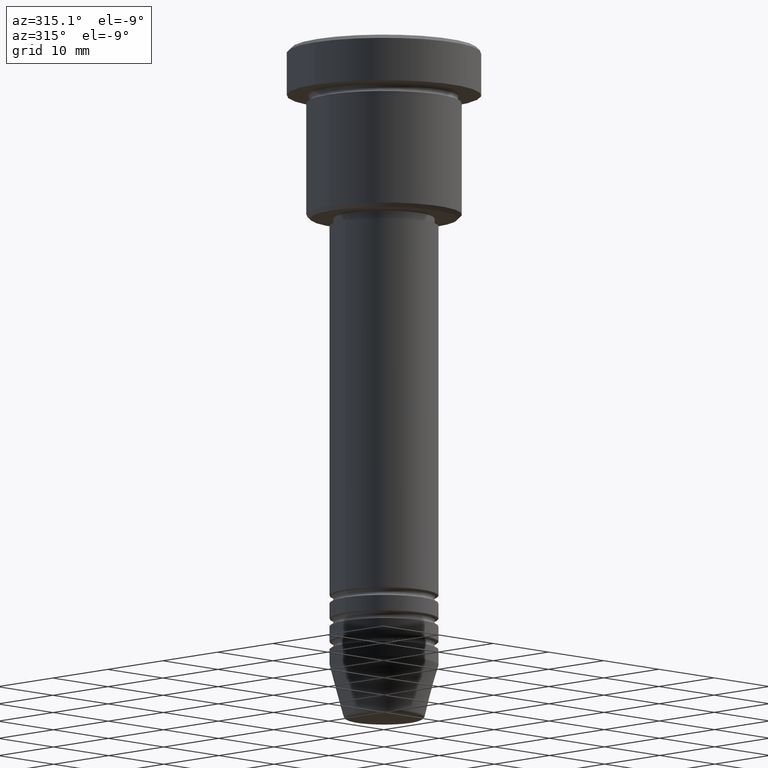
[diagram: clean part render]
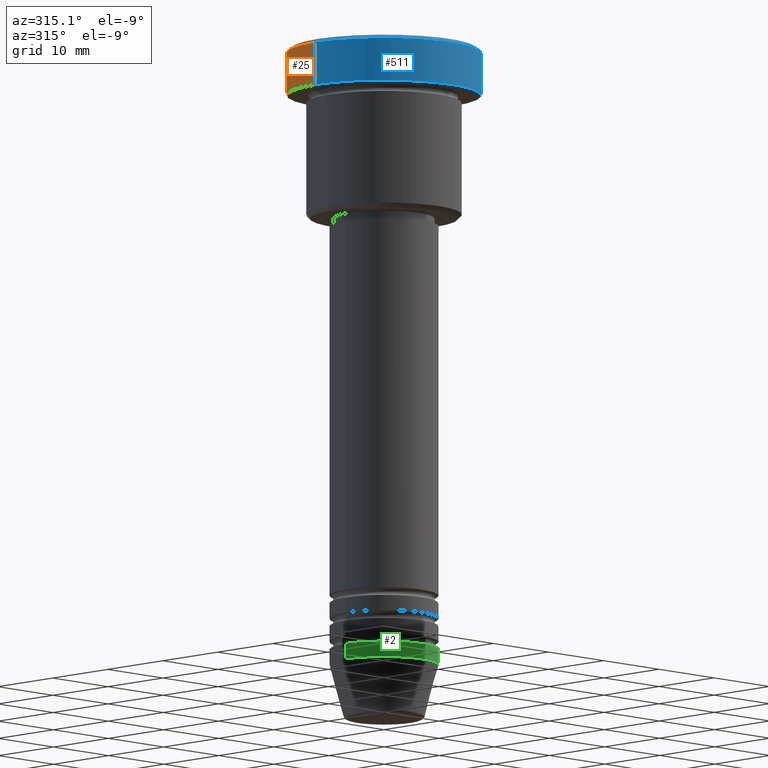
[diagram: same view with three faces highlighted in distinct colors, each labeled with its STEP entity id]
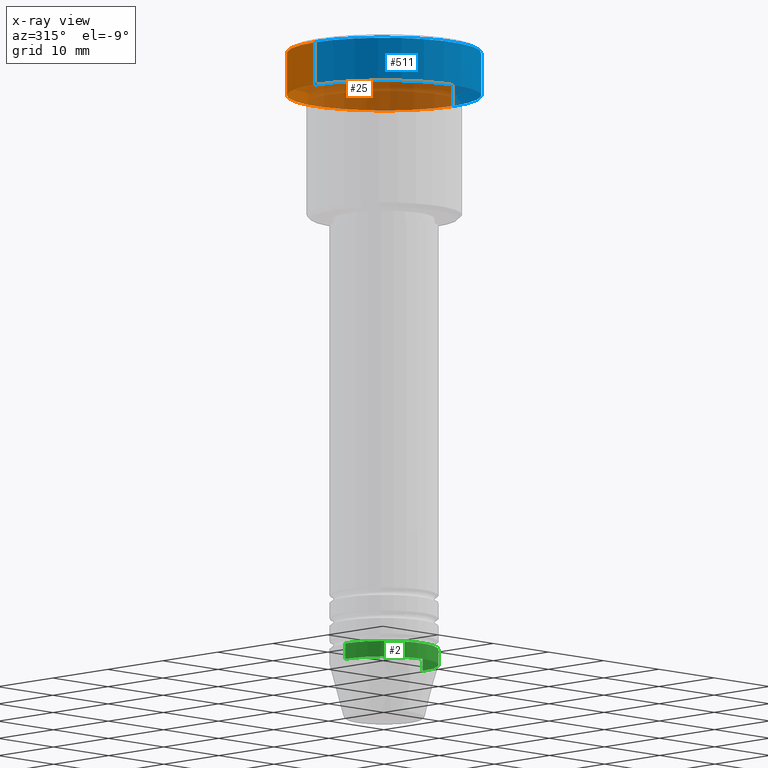
[diagram: x-ray of the same camera — body ghosted, the three highlighted faces saturated]
A machine part, auxiliary view with three faces highlighted in distinct colors.
The next image is the same camera in x-ray (body ghosted, the three faces saturated) — at least one of them is partly hidden behind the body in this view.
Their STEP definitions:

[orange] entity #25 — the highlighted cylindrical surface (partial cylindrical patch) has radius 12.5 mm, axis along (-0, -0, 1).
#17 = CARTESIAN_POINT ( 'NONE',  ( 12.50000000000000000, 0.000000000000000000, -5.999999999999996447 ) ) ;
#25 = ADVANCED_FACE ( 'NONE', ( #221 ), #951, .T. ) ;
#26 = CARTESIAN_POINT ( 'NONE',  ( 12.50000000000000000, 0.000000000000000000, -0.4999999999999917843 ) ) ;
#106 = EDGE_CURVE ( 'NONE', #1090, #573, #600, .T. ) ;
#185 = ORIENTED_EDGE ( 'NONE', *, *, #472, .T. ) ;
#188 = DIRECTION ( 'NONE',  ( -0.000000000000000000, -0.000000000000000000, 1.000000000000000000 ) ) ;
#221 = FACE_OUTER_BOUND ( 'NONE', #1119, .T. ) ;
#236 = AXIS2_PLACEMENT_3D ( 'NONE', #396, #416, #515 ) ;
#248 = CARTESIAN_POINT ( 'NONE',  ( -12.50000000000000000, 1.530808498934191521E-15, -0.4999999999999917843 ) ) ;
#396 = CARTESIAN_POINT ( 'NONE',  ( 0.000000000000000000, 0.000000000000000000, -0.4999999999999917843 ) ) ;
#409 = CIRCLE ( 'NONE', #487, 12.50000000000000000 ) ;
#416 = DIRECTION ( 'NONE',  ( 0.000000000000000000, 0.000000000000000000, -1.000000000000000000 ) ) ;
#424 = VECTOR ( 'NONE', #1147, 1000.000000000000000 ) ;
#472 = EDGE_CURVE ( 'NONE', #742, #544, #543, .T. ) ;
#487 = AXIS2_PLACEMENT_3D ( 'NONE', #845, #188, #919 ) ;
#515 = DIRECTION ( 'NONE',  ( 1.000000000000000000, 0.000000000000000000, 0.000000000000000000 ) ) ;
#535 = ORIENTED_EDGE ( 'NONE', *, *, #750, .T. ) ;
#543 = LINE ( 'NONE', #635, #603 ) ;
#544 = VERTEX_POINT ( 'NONE', #248 ) ;
#573 = VERTEX_POINT ( 'NONE', #26 ) ;
#600 = LINE ( 'NONE', #786, #424 ) ;
#603 = VECTOR ( 'NONE', #902, 1000.000000000000000 ) ;
#611 = DIRECTION ( 'NONE',  ( -0.000000000000000000, -0.000000000000000000, 1.000000000000000000 ) ) ;
#635 = CARTESIAN_POINT ( 'NONE',  ( -12.50000000000000000, 1.530808498934191521E-15, 0.000000000000000000 ) ) ;
#693 = CARTESIAN_POINT ( 'NONE',  ( 0.000000000000000000, 0.000000000000000000, 0.000000000000000000 ) ) ;
#742 = VERTEX_POINT ( 'NONE', #1036 ) ;
#750 = EDGE_CURVE ( 'NONE', #544, #573, #886, .T. ) ;
#786 = CARTESIAN_POINT ( 'NONE',  ( 12.50000000000000000, 0.000000000000000000, 0.000000000000000000 ) ) ;
#792 = DIRECTION ( 'NONE',  ( 1.000000000000000000, 0.000000000000000000, 0.000000000000000000 ) ) ;
#845 = CARTESIAN_POINT ( 'NONE',  ( 0.000000000000000000, 0.000000000000000000, -5.999999999999996447 ) ) ;
#881 = AXIS2_PLACEMENT_3D ( 'NONE', #693, #611, #792 ) ;
#886 = CIRCLE ( 'NONE', #236, 12.50000000000000000 ) ;
#902 = DIRECTION ( 'NONE',  ( -0.000000000000000000, -0.000000000000000000, 1.000000000000000000 ) ) ;
#919 = DIRECTION ( 'NONE',  ( 1.000000000000000000, 0.000000000000000000, 0.000000000000000000 ) ) ;
#951 = CYLINDRICAL_SURFACE ( 'NONE', #881, 12.50000000000000000 ) ;
#1036 = CARTESIAN_POINT ( 'NONE',  ( -12.50000000000000000, 1.530808498934191521E-15, -5.999999999999996447 ) ) ;
#1041 = ORIENTED_EDGE ( 'NONE', *, *, #1129, .T. ) ;
#1090 = VERTEX_POINT ( 'NONE', #17 ) ;
#1119 = EDGE_LOOP ( 'NONE', ( #1041, #185, #535, #1136 ) ) ;
#1129 = EDGE_CURVE ( 'NONE', #1090, #742, #409, .T. ) ;
#1136 = ORIENTED_EDGE ( 'NONE', *, *, #106, .F. ) ;
#1147 = DIRECTION ( 'NONE',  ( -0.000000000000000000, -0.000000000000000000, 1.000000000000000000 ) ) ;

[blue] entity #511 — the highlighted cylindrical surface (partial cylindrical patch) has radius 12.5 mm, axis along (-0, -0, 1).
#17 = CARTESIAN_POINT ( 'NONE',  ( 12.50000000000000000, 0.000000000000000000, -5.999999999999996447 ) ) ;
#26 = CARTESIAN_POINT ( 'NONE',  ( 12.50000000000000000, 0.000000000000000000, -0.4999999999999917843 ) ) ;
#86 = EDGE_CURVE ( 'NONE', #573, #544, #1033, .T. ) ;
#100 = DIRECTION ( 'NONE',  ( -0.000000000000000000, -0.000000000000000000, 1.000000000000000000 ) ) ;
#106 = EDGE_CURVE ( 'NONE', #1090, #573, #600, .T. ) ;
#169 = FACE_OUTER_BOUND ( 'NONE', #359, .T. ) ;
#171 = EDGE_CURVE ( 'NONE', #742, #1090, #249, .T. ) ;
#248 = CARTESIAN_POINT ( 'NONE',  ( -12.50000000000000000, 1.530808498934191521E-15, -0.4999999999999917843 ) ) ;
#249 = CIRCLE ( 'NONE', #850, 12.50000000000000000 ) ;
#269 = AXIS2_PLACEMENT_3D ( 'NONE', #910, #100, #646 ) ;
#312 = DIRECTION ( 'NONE',  ( 1.000000000000000000, 0.000000000000000000, 0.000000000000000000 ) ) ;
#359 = EDGE_LOOP ( 'NONE', ( #855, #791, #474, #1031 ) ) ;
#424 = VECTOR ( 'NONE', #1147, 1000.000000000000000 ) ;
#472 = EDGE_CURVE ( 'NONE', #742, #544, #543, .T. ) ;
#474 = ORIENTED_EDGE ( 'NONE', *, *, #106, .T. ) ;
#511 = ADVANCED_FACE ( 'NONE', ( #169 ), #551, .T. ) ;
#543 = LINE ( 'NONE', #635, #603 ) ;
#544 = VERTEX_POINT ( 'NONE', #248 ) ;
#551 = CYLINDRICAL_SURFACE ( 'NONE', #269, 12.50000000000000000 ) ;
#564 = DIRECTION ( 'NONE',  ( 1.000000000000000000, 0.000000000000000000, 0.000000000000000000 ) ) ;
#573 = VERTEX_POINT ( 'NONE', #26 ) ;
#600 = LINE ( 'NONE', #786, #424 ) ;
#603 = VECTOR ( 'NONE', #902, 1000.000000000000000 ) ;
#635 = CARTESIAN_POINT ( 'NONE',  ( -12.50000000000000000, 1.530808498934191521E-15, 0.000000000000000000 ) ) ;
#646 = DIRECTION ( 'NONE',  ( 1.000000000000000000, 0.000000000000000000, 0.000000000000000000 ) ) ;
#655 = CARTESIAN_POINT ( 'NONE',  ( 0.000000000000000000, 0.000000000000000000, -5.999999999999996447 ) ) ;
#742 = VERTEX_POINT ( 'NONE', #1036 ) ;
#773 = DIRECTION ( 'NONE',  ( 0.000000000000000000, 0.000000000000000000, -1.000000000000000000 ) ) ;
#786 = CARTESIAN_POINT ( 'NONE',  ( 12.50000000000000000, 0.000000000000000000, 0.000000000000000000 ) ) ;
#791 = ORIENTED_EDGE ( 'NONE', *, *, #171, .T. ) ;
#831 = AXIS2_PLACEMENT_3D ( 'NONE', #1158, #773, #312 ) ;
#850 = AXIS2_PLACEMENT_3D ( 'NONE', #655, #1016, #564 ) ;
#855 = ORIENTED_EDGE ( 'NONE', *, *, #472, .F. ) ;
#902 = DIRECTION ( 'NONE',  ( -0.000000000000000000, -0.000000000000000000, 1.000000000000000000 ) ) ;
#910 = CARTESIAN_POINT ( 'NONE',  ( 0.000000000000000000, 0.000000000000000000, 0.000000000000000000 ) ) ;
#1016 = DIRECTION ( 'NONE',  ( -0.000000000000000000, -0.000000000000000000, 1.000000000000000000 ) ) ;
#1031 = ORIENTED_EDGE ( 'NONE', *, *, #86, .T. ) ;
#1033 = CIRCLE ( 'NONE', #831, 12.50000000000000000 ) ;
#1036 = CARTESIAN_POINT ( 'NONE',  ( -12.50000000000000000, 1.530808498934191521E-15, -5.999999999999996447 ) ) ;
#1090 = VERTEX_POINT ( 'NONE', #17 ) ;
#1147 = DIRECTION ( 'NONE',  ( -0.000000000000000000, -0.000000000000000000, 1.000000000000000000 ) ) ;
#1158 = CARTESIAN_POINT ( 'NONE',  ( 0.000000000000000000, 0.000000000000000000, -0.4999999999999917843 ) ) ;

[green] entity #2 — the highlighted cylindrical surface (partial cylindrical patch) has radius 7 mm, axis along (-0, -0, 1).
#2 = ADVANCED_FACE ( 'NONE', ( #937 ), #1122, .T. ) ;
#13 = ORIENTED_EDGE ( 'NONE', *, *, #1107, .T. ) ;
#33 = AXIS2_PLACEMENT_3D ( 'NONE', #475, #555, #1017 ) ;
#48 = CARTESIAN_POINT ( 'NONE',  ( 7.000000000000000000, 0.000000000000000000, 0.000000000000000000 ) ) ;
#152 = CARTESIAN_POINT ( 'NONE',  ( 0.000000000000000000, 0.000000000000000000, -77.99999999999998579 ) ) ;
#176 = CARTESIAN_POINT ( 'NONE',  ( 7.000000000000000000, 0.000000000000000000, -79.99999999999998579 ) ) ;
#204 = EDGE_CURVE ( 'NONE', #812, #1176, #601, .T. ) ;
#232 = AXIS2_PLACEMENT_3D ( 'NONE', #152, #1181, #352 ) ;
#288 = VECTOR ( 'NONE', #803, 1000.000000000000000 ) ;
#350 = ORIENTED_EDGE ( 'NONE', *, *, #1078, .T. ) ;
#352 = DIRECTION ( 'NONE',  ( 1.000000000000000000, 0.000000000000000000, 0.000000000000000000 ) ) ;
#364 = EDGE_CURVE ( 'NONE', #1003, #812, #431, .T. ) ;
#399 = DIRECTION ( 'NONE',  ( 1.000000000000000000, 0.000000000000000000, 0.000000000000000000 ) ) ;
#425 = ORIENTED_EDGE ( 'NONE', *, *, #364, .F. ) ;
#428 = CIRCLE ( 'NONE', #33, 7.000000000000000000 ) ;
#431 = LINE ( 'NONE', #595, #288 ) ;
#435 = EDGE_LOOP ( 'NONE', ( #425, #350, #13, #1089 ) ) ;
#460 = AXIS2_PLACEMENT_3D ( 'NONE', #1138, #958, #399 ) ;
#475 = CARTESIAN_POINT ( 'NONE',  ( 0.000000000000000000, 0.000000000000000000, -79.99999999999998579 ) ) ;
#478 = VERTEX_POINT ( 'NONE', #176 ) ;
#555 = DIRECTION ( 'NONE',  ( -0.000000000000000000, -0.000000000000000000, 1.000000000000000000 ) ) ;
#565 = LINE ( 'NONE', #48, #609 ) ;
#595 = CARTESIAN_POINT ( 'NONE',  ( -7.000000000000000000, 8.572527594031473190E-16, 0.000000000000000000 ) ) ;
#601 = CIRCLE ( 'NONE', #232, 7.000000000000000000 ) ;
#609 = VECTOR ( 'NONE', #661, 1000.000000000000000 ) ;
#661 = DIRECTION ( 'NONE',  ( -0.000000000000000000, -0.000000000000000000, 1.000000000000000000 ) ) ;
#785 = CARTESIAN_POINT ( 'NONE',  ( 7.000000000000000000, 0.000000000000000000, -77.99999999999998579 ) ) ;
#803 = DIRECTION ( 'NONE',  ( -0.000000000000000000, -0.000000000000000000, 1.000000000000000000 ) ) ;
#812 = VERTEX_POINT ( 'NONE', #877 ) ;
#827 = CARTESIAN_POINT ( 'NONE',  ( -7.000000000000000000, 8.572527594031473190E-16, -79.99999999999998579 ) ) ;
#877 = CARTESIAN_POINT ( 'NONE',  ( -7.000000000000000000, 8.572527594031473190E-16, -77.99999999999998579 ) ) ;
#937 = FACE_OUTER_BOUND ( 'NONE', #435, .T. ) ;
#958 = DIRECTION ( 'NONE',  ( -0.000000000000000000, -0.000000000000000000, 1.000000000000000000 ) ) ;
#1003 = VERTEX_POINT ( 'NONE', #827 ) ;
#1017 = DIRECTION ( 'NONE',  ( 1.000000000000000000, 0.000000000000000000, 0.000000000000000000 ) ) ;
#1078 = EDGE_CURVE ( 'NONE', #1003, #478, #428, .T. ) ;
#1089 = ORIENTED_EDGE ( 'NONE', *, *, #204, .F. ) ;
#1107 = EDGE_CURVE ( 'NONE', #478, #1176, #565, .T. ) ;
#1122 = CYLINDRICAL_SURFACE ( 'NONE', #460, 7.000000000000000000 ) ;
#1138 = CARTESIAN_POINT ( 'NONE',  ( 0.000000000000000000, 0.000000000000000000, 0.000000000000000000 ) ) ;
#1176 = VERTEX_POINT ( 'NONE', #785 ) ;
#1181 = DIRECTION ( 'NONE',  ( -0.000000000000000000, -0.000000000000000000, 1.000000000000000000 ) ) ;